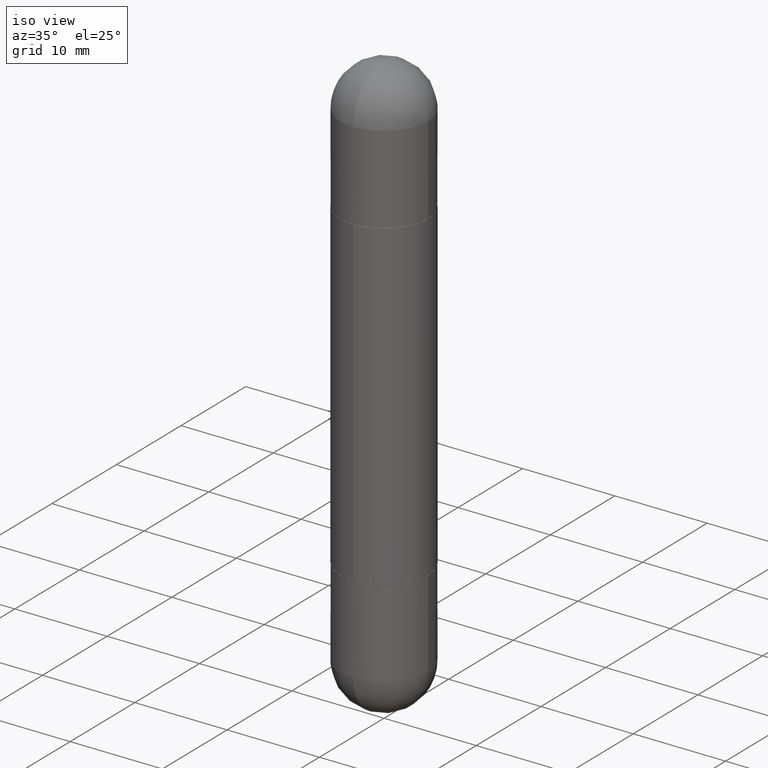
[diagram: clean part render]
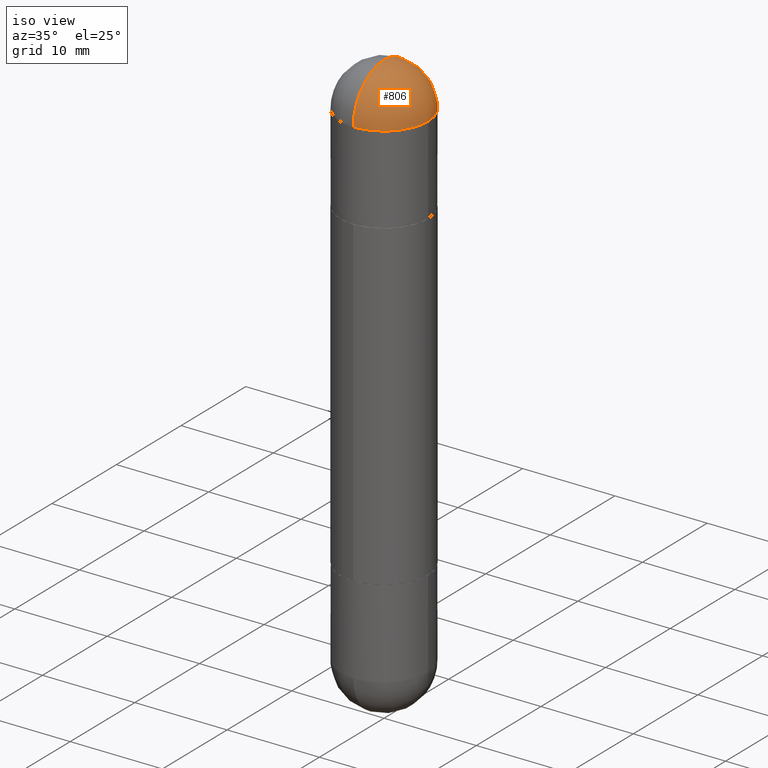
[diagram: same view with one face highlighted and labeled with its STEP entity id]
A machine part, iso view. The second image highlights one B-rep face of the part: STEP entity #806.
In plain terms, the highlighted spherical surface has radius 4.7625 mm.
Its self-contained STEP definition (entity closure, byte-faithful):
#32 = CARTESIAN_POINT ( 'NONE',  ( 1.309305502066231017E-15, 0.1874999999999918954, -0.1875000000000000278 ) ) ;
#60 = EDGE_LOOP ( 'NONE', ( #551, #705, #173, #128 ) ) ;
#81 = CARTESIAN_POINT ( 'NONE',  ( -1.286343374582108525E-15, -0.1875000000000084932, -0.1875000000000013045 ) ) ;
#87 = DIRECTION ( 'NONE',  ( 2.445468806185136597E-29, -3.491481338843145583E-15, 1.000000000000000000 ) ) ;
#101 = VERTEX_POINT ( 'NONE', #32 ) ;
#127 = EDGE_CURVE ( 'NONE', #496, #101, #497, .T. ) ;
#128 = ORIENTED_EDGE ( 'NONE', *, *, #442, .T. ) ;
#156 = DIRECTION ( 'NONE',  ( 2.445468806185136597E-29, -3.491481338843145583E-15, 1.000000000000000000 ) ) ;
#173 = ORIENTED_EDGE ( 'NONE', *, *, #780, .T. ) ;
#194 = CARTESIAN_POINT ( 'NONE',  ( 5.324026836389243254E-29, -8.548232964214825368E-15, -0.1875000000000006661 ) ) ;
#204 = DIRECTION ( 'NONE',  ( 1.000000000000000000, -6.982962677686266711E-15, -4.883557194083113462E-29 ) ) ;
#205 = CARTESIAN_POINT ( 'NONE',  ( 5.655146614303128380E-29, -8.074050596074775072E-15, -0.1875000000000006661 ) ) ;
#240 = DIRECTION ( 'NONE',  ( 1.000000000000000000, -6.860497997771530774E-15, -4.840798879624142912E-29 ) ) ;
#245 = AXIS2_PLACEMENT_3D ( 'NONE', #665, #299, #684 ) ;
#267 = DIRECTION ( 'NONE',  ( 1.000000000000000000, -6.982962677686270655E-15, 0.000000000000000000 ) ) ;
#277 = DIRECTION ( 'NONE',  ( 1.000000000000000000, -6.982962677686270655E-15, 0.000000000000000000 ) ) ;
#284 = CARTESIAN_POINT ( 'NONE',  ( 5.324026836389243254E-29, -8.548232964214825368E-15, -0.1875000000000006661 ) ) ;
#296 = DIRECTION ( 'NONE',  ( 6.860497997771530774E-15, 1.000000000000000000, 0.000000000000000000 ) ) ;
#299 = DIRECTION ( 'NONE',  ( -1.000000000000000000, 6.982962677686265922E-15, 4.883557194083112340E-29 ) ) ;
#334 = CARTESIAN_POINT ( 'NONE',  ( 5.790569421510013204E-29, -9.191404651505909607E-15, -3.414809992080329023E-16 ) ) ;
#356 = CIRCLE ( 'NONE', #798, 0.1875000000000000555 ) ;
#383 = DIRECTION ( 'NONE',  ( 6.982962677686266711E-15, 1.000000000000000000, 3.460340791974727494E-15 ) ) ;
#442 = EDGE_CURVE ( 'NONE', #513, #101, #356, .T. ) ;
#488 = VERTEX_POINT ( 'NONE', #81 ) ;
#496 = VERTEX_POINT ( 'NONE', #334 ) ;
#497 = CIRCLE ( 'NONE', #245, 0.1875000000000003331 ) ;
#500 = CIRCLE ( 'NONE', #637, 0.1875000000000003331 ) ;
#510 = SPHERICAL_SURFACE ( 'NONE', #629, 0.1875000000000003331 ) ;
#513 = VERTEX_POINT ( 'NONE', #596 ) ;
#551 = ORIENTED_EDGE ( 'NONE', *, *, #127, .F. ) ;
#588 = EDGE_CURVE ( 'NONE', #496, #488, #500, .T. ) ;
#596 = CARTESIAN_POINT ( 'NONE',  ( 0.1875000000000000555, -8.729576217442571356E-15, -0.1875000000000006661 ) ) ;
#629 = AXIS2_PLACEMENT_3D ( 'NONE', #194, #204, #383 ) ;
#637 = AXIS2_PLACEMENT_3D ( 'NONE', #284, #240, #296 ) ;
#665 = CARTESIAN_POINT ( 'NONE',  ( 5.324026836389243254E-29, -8.548232964214825368E-15, -0.1875000000000006661 ) ) ;
#684 = DIRECTION ( 'NONE',  ( -6.982962677686265922E-15, -1.000000000000000000, 0.000000000000000000 ) ) ;
#705 = ORIENTED_EDGE ( 'NONE', *, *, #588, .T. ) ;
#709 = CARTESIAN_POINT ( 'NONE',  ( 5.655146614303128380E-29, -8.074050596074775072E-15, -0.1875000000000006661 ) ) ;
#710 = FACE_OUTER_BOUND ( 'NONE', #60, .T. ) ;
#780 = EDGE_CURVE ( 'NONE', #488, #513, #801, .T. ) ;
#784 = AXIS2_PLACEMENT_3D ( 'NONE', #205, #87, #277 ) ;
#798 = AXIS2_PLACEMENT_3D ( 'NONE', #709, #156, #267 ) ;
#801 = CIRCLE ( 'NONE', #784, 0.1875000000000000555 ) ;
#806 = ADVANCED_FACE ( 'NONE', ( #710 ), #510, .T. ) ;